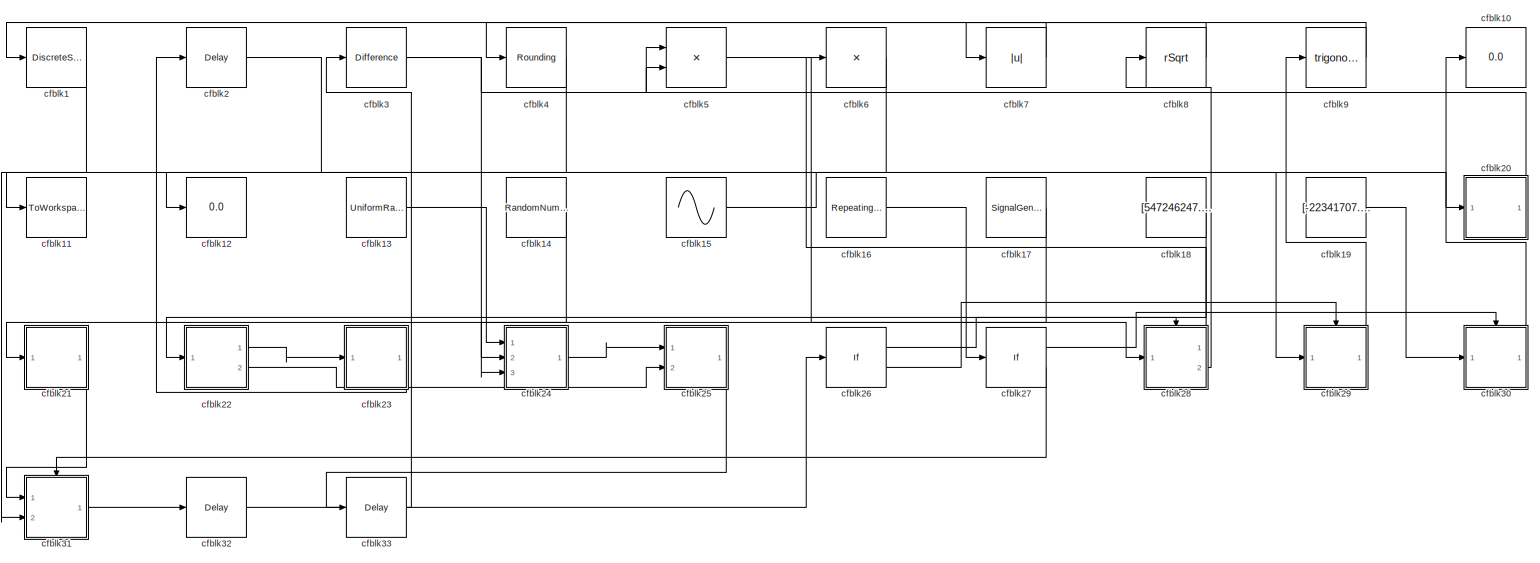
[diagram: root canvas - part 1/1, most of the canvas]
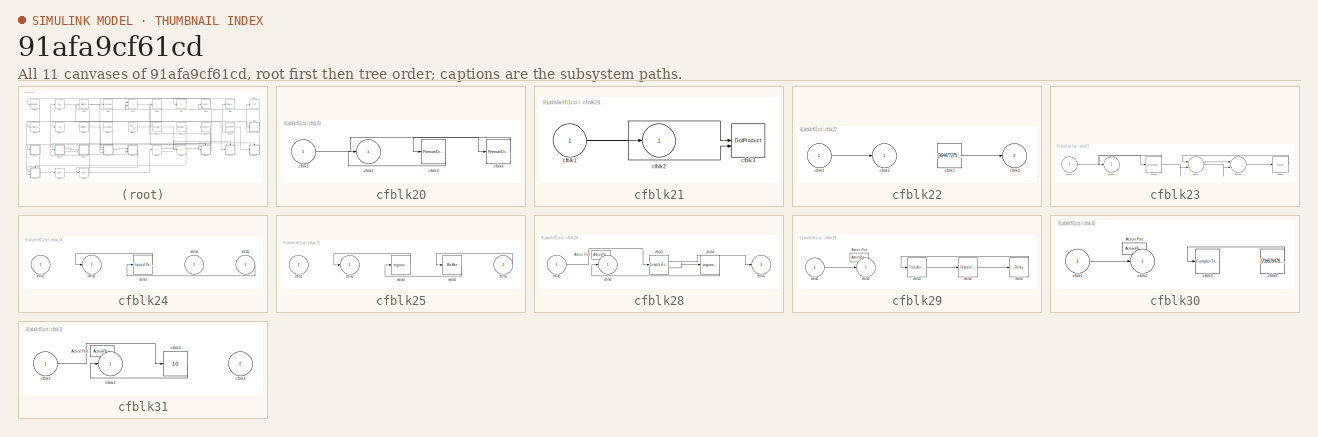
[diagram: thumbnail index - all 11 canvases of the model, root first then tree order]
MODEL slx_91afa9cf61cd
KIND model
CONFIG AbsTol = auto
CONFIG EnableMultiTasking = off
CONFIG FixedStep = auto
CONFIG MaxStep = auto
CONFIG MinStep = auto
CONFIG RelTol = 1e-3
CONFIG SampleTimeConstraint = Unconstrained
CONFIG SolverName = VariableStepAuto
CONFIG StartTime = 0.0
CONFIG StopTime = 10.0
BLOCK [DiscreteStateSpace] cfblk1
BLOCK [Display] cfblk10
  Decimation = 1
  Ports = [1]
BLOCK [ToWorkspace] cfblk11
  FixptAsFi = on
  MaxDataPoints = inf
  Ports = [1]
  SampleTime = -1
  SaveFormat = Timeseries
  VariableName = mathbqp
BLOCK [Display] cfblk12
  Decimation = 1
  Ports = [1]
BLOCK [UniformRandomNumber] cfblk13
  Maximum = [3433340818.246167]
  Minimum = [-421983085.608282]
  SampleTime = 0.1
  Seed = [66348310.000000]
BLOCK [RandomNumber] cfblk14
  Mean = [-95778.519476]
  SampleTime = 0.1
  Seed = [321896255.000000]
  Variance = [30138.949013]
BLOCK [Sin] cfblk15
  Amplitude = [638491597.447278]
  Bias = [92663918.760373]
  Ports = [0, 1]
  SampleTime = 0
BLOCK [Reference] cfblk16  REF=simulink/Sources/Repeating
Sequence
Interpolated
  Ports = [0, 1]
  SourceBlock = simulink/Sources/Repeating\nSequence\nInterpolated
  SourceProductBaseCode = SL
  SourceType = Repeating Sequence Interpolated
BLOCK [SignalGenerator] cfblk17
  Amplitude = [-48112224.356476]
  Ports = [0, 1]
  Units = rad/sec
BLOCK [Constant] cfblk18
  SampleTime = 1
  Value = [547246247.992021]
BLOCK [Constant] cfblk19
  SampleTime = 1
  Value = [-22341707.480297]
BLOCK [Delay] cfblk2
  InputPortMap = u0
  Ports = [1, 1]
  SampleTime = 1
BLOCK [SubSystem] cfblk20
  Ports = [1, 1]
  RequestExecContextInheritance = off
BLOCK [Inport] cfblk20/cfblk1
BLOCK [Outport] cfblk20/cfblk2
BLOCK [PermuteDimensions] cfblk20/cfblk3
BLOCK [PermuteDimensions] cfblk20/cfblk4
BLOCK [SubSystem] cfblk21
  Ports = [1, 1]
  RequestExecContextInheritance = off
BLOCK [Inport] cfblk21/cfblk1
BLOCK [Outport] cfblk21/cfblk2
BLOCK [DotProduct] cfblk21/cfblk3
  OutDataTypeStr = Inherit: Inherit via internal rule
BLOCK [SubSystem] cfblk22
  Ports = [1, 2]
  RequestExecContextInheritance = off
BLOCK [Inport] cfblk22/cfblk1
BLOCK [Outport] cfblk22/cfblk2
BLOCK [Constant] cfblk22/cfblk3
  SampleTime = 1
  Value = [364477275.805719]
BLOCK [Outport] cfblk22/cfblk4
  Port = 2
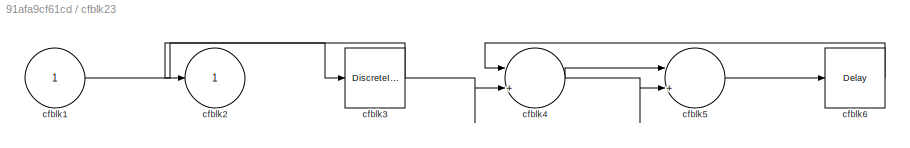
BLOCK [SubSystem] cfblk23
  Ports = [1, 1]
  RequestExecContextInheritance = off
BLOCK [Inport] cfblk23/cfblk1
BLOCK [Outport] cfblk23/cfblk2
BLOCK [DiscreteIntegrator] cfblk23/cfblk3
  ICPrevOutput = DiscIntNeverNeededParam
  ICPrevScaledInput = DiscIntNeverNeededParam
  InitialConditionSetting = Auto
  Ports = [1, 1]
BLOCK [Sum] cfblk23/cfblk4
  Inputs = |++
  Ports = [2, 1]
BLOCK [Sum] cfblk23/cfblk5
  Inputs = |++
  Ports = [2, 1]
BLOCK [Delay] cfblk23/cfblk6
  InputPortMap = u0
  Ports = [1, 1]
  SampleTime = 1
BLOCK [SubSystem] cfblk24
  Ports = [3, 1]
  RequestExecContextInheritance = off
BLOCK [Inport] cfblk24/cfblk1
BLOCK [Outport] cfblk24/cfblk2
BLOCK [Reference] cfblk24/cfblk3  REF=simulink/Discrete/Tapped Delay
  Ports = [1, 1]
  SourceBlock = simulink/Discrete/Tapped Delay
  SourceProductBaseCode = SL
  SourceType = Tapped Delay Line
BLOCK [Inport] cfblk24/cfblk4
  Port = 2
BLOCK [Inport] cfblk24/cfblk5
  Port = 3
BLOCK [SubSystem] cfblk25
  Ports = [2, 1]
  RequestExecContextInheritance = off
BLOCK [Inport] cfblk25/cfblk1
BLOCK [Outport] cfblk25/cfblk2
BLOCK [Trigonometry] cfblk25/cfblk3
  Ports = [1, 1]
BLOCK [MinMax] cfblk25/cfblk4
  Ports = [1, 1]
BLOCK [Inport] cfblk25/cfblk5
  Port = 2
BLOCK [If] cfblk26
  IfExpression = u1 >= 0
  Ports = [1, 2]
  SampleTime = 1
BLOCK [If] cfblk27
  IfExpression = u1 >= 0
  Ports = [1, 2]
  SampleTime = 1
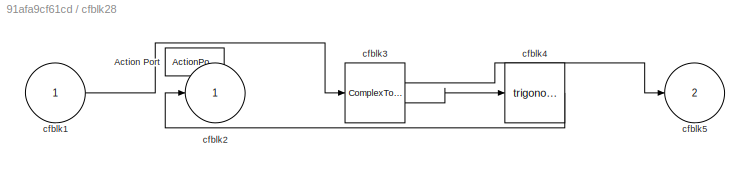
BLOCK [SubSystem] cfblk28
  Ports = [1, 2, 0, 0, 0, 0, 0, 1]
  RequestExecContextInheritance = off
  TreatAsAtomicUnit = on
BLOCK [ActionPort] cfblk28/Action Port
  ActionPortLabel = if(u1 >= 0)
BLOCK [Inport] cfblk28/cfblk1
BLOCK [Outport] cfblk28/cfblk2
BLOCK [ComplexToRealImag] cfblk28/cfblk3
  Ports = [1, 2]
BLOCK [Trigonometry] cfblk28/cfblk4
  Ports = [1, 1]
BLOCK [Outport] cfblk28/cfblk5
  Port = 2
BLOCK [SubSystem] cfblk29
  Ports = [1, 1, 0, 0, 0, 0, 0, 1]
  RequestExecContextInheritance = off
  TreatAsAtomicUnit = on
BLOCK [ActionPort] cfblk29/Action Port
  ActionPortLabel = else
BLOCK [Inport] cfblk29/cfblk1
BLOCK [Outport] cfblk29/cfblk2
BLOCK [Reference] cfblk29/cfblk3  REF=simulink/Discrete/Transfer Fcn
Real Zero
  Ports = [1, 1]
  SourceBlock = simulink/Discrete/Transfer Fcn\nReal Zero
  SourceProductBaseCode = SL
  SourceType = Transfer Fcn Real Zero
BLOCK [DiscreteIntegrator] cfblk29/cfblk4
  ICPrevOutput = DiscIntNeverNeededParam
  ICPrevScaledInput = DiscIntNeverNeededParam
  InitialConditionSetting = Auto
  Ports = [1, 1]
  SampleTime = -1
BLOCK [Delay] cfblk29/cfblk5
  InputPortMap = u0
  Ports = [1, 1]
BLOCK [Reference] cfblk3  REF=simulink/Discrete/Difference
  Ports = [1, 1]
  SourceBlock = simulink/Discrete/Difference
  SourceProductBaseCode = SL
  SourceType = Difference
BLOCK [SubSystem] cfblk30
  Ports = [1, 1, 0, 0, 0, 0, 0, 1]
  RequestExecContextInheritance = off
  TreatAsAtomicUnit = on
BLOCK [ActionPort] cfblk30/Action Port
  ActionPortLabel = if(u1 >= 0)
BLOCK [Inport] cfblk30/cfblk1
BLOCK [Outport] cfblk30/cfblk2
BLOCK [ComplexToMagnitudeAngle] cfblk30/cfblk3
  Ports = [1, 2]
BLOCK [Constant] cfblk30/cfblk4
  SampleTime = 1
  Value = [706676478.988094]
BLOCK [SubSystem] cfblk31
  Ports = [2, 1, 0, 0, 0, 0, 0, 1]
  RequestExecContextInheritance = off
  TreatAsAtomicUnit = on
BLOCK [ActionPort] cfblk31/Action Port
  ActionPortLabel = else
BLOCK [Inport] cfblk31/cfblk1
BLOCK [Outport] cfblk31/cfblk2
BLOCK [UnitDelay] cfblk31/cfblk3
  HasFrameUpgradeWarning = on
  SampleTime = -1
BLOCK [Inport] cfblk31/cfblk4
  Port = 2
BLOCK [Delay] cfblk32
  InputPortMap = u0
  Ports = [1, 1]
  SampleTime = 1
BLOCK [Delay] cfblk33
  InputPortMap = u0
  Ports = [1, 1]
  SampleTime = 1
BLOCK [Rounding] cfblk4
BLOCK [Product] cfblk5
  Ports = [2, 1]
BLOCK [Product] cfblk6
  Inputs = *
  Ports = [1, 1]
BLOCK [Abs] cfblk7
  SaturateOnIntegerOverflow = off
BLOCK [Sqrt] cfblk8
  AlgorithmType = Newton-Raphson
  Operator = rSqrt
BLOCK [Trigonometry] cfblk9
  Ports = [1, 1]
LINE cfblk13:1 -> cfblk24:1
LINE cfblk14:1 -> cfblk21:1
LINE cfblk15:1 -> cfblk29:1
LINE cfblk16:1 -> cfblk27:1
LINE cfblk17:1 -> cfblk24:3
LINE cfblk18:1 -> cfblk22:1
LINE cfblk19:1 -> cfblk30:1
LINE cfblk1:1 -> cfblk11:1
LINE cfblk20/cfblk1:1 -> cfblk20/cfblk4:1
LINE cfblk20/cfblk3:1 -> cfblk20/cfblk2:1
LINE cfblk20/cfblk4:1 -> cfblk20/cfblk3:1
LINE cfblk20:1 -> cfblk5:1
NET cfblk21/cfblk1:1 -> cfblk21/cfblk2:1, cfblk21/cfblk3:1, cfblk21/cfblk3:2
LINE cfblk21:1 -> cfblk31:1
LINE cfblk22/cfblk1:1 -> cfblk22/cfblk2:1
LINE cfblk22/cfblk3:1 -> cfblk22/cfblk4:1
LINE cfblk22:1 -> cfblk23:1
LINE cfblk22:2 -> cfblk25:2
LINE cfblk23/cfblk1:1 -> cfblk23/cfblk3:1
NET cfblk23/cfblk3:1 -> cfblk23/cfblk2:1, cfblk23/cfblk4:2
NET cfblk23/cfblk4:1 -> cfblk23/cfblk5:1, cfblk23/cfblk5:2
LINE cfblk23/cfblk5:1 -> cfblk23/cfblk6:1
LINE cfblk23/cfblk6:1 -> cfblk23/cfblk4:1
LINE cfblk23:1 -> cfblk2:1
LINE cfblk24/cfblk3:1 -> cfblk24/cfblk2:1
LINE cfblk24/cfblk5:1 -> cfblk24/cfblk3:1
LINE cfblk24:1 -> cfblk25:1
LINE cfblk25/cfblk3:1 -> cfblk25/cfblk2:1
LINE cfblk25/cfblk4:1 -> cfblk25/cfblk3:1
LINE cfblk25/cfblk5:1 -> cfblk25/cfblk4:1
LINE cfblk25:1 -> cfblk33:1
LINE cfblk26:1 -> cfblk28:ifaction
LINE cfblk26:2 -> cfblk29:ifaction
LINE cfblk27:1 -> cfblk30:ifaction
LINE cfblk27:2 -> cfblk31:ifaction
LINE cfblk28/cfblk1:1 -> cfblk28/cfblk3:1
LINE cfblk28/cfblk3:1 -> cfblk28/cfblk5:1
LINE cfblk28/cfblk3:2 -> cfblk28/cfblk4:1
LINE cfblk28/cfblk4:1 -> cfblk28/cfblk2:1
LINE cfblk28:1 -> cfblk6:1
LINE cfblk28:2 -> cfblk8:1
LINE cfblk29/cfblk1:1 -> cfblk29/cfblk2:1
LINE cfblk29/cfblk3:1 -> cfblk29/cfblk4:1
LINE cfblk29/cfblk4:1 -> cfblk29/cfblk5:1
LINE cfblk29/cfblk5:1 -> cfblk29/cfblk3:1
LINE cfblk29:1 -> cfblk9:1
LINE cfblk2:1 -> cfblk20:1
LINE cfblk30/cfblk1:1 -> cfblk30/cfblk2:1
LINE cfblk30/cfblk4:1 -> cfblk30/cfblk3:1
LINE cfblk30:1 -> cfblk10:1
LINE cfblk31/cfblk1:1 -> cfblk31/cfblk3:1
LINE cfblk31/cfblk3:1 -> cfblk31/cfblk2:1
LINE cfblk31:1 -> cfblk32:1
LINE cfblk32:1 -> cfblk26:1
LINE cfblk33:1 -> cfblk3:1
NET cfblk3:1 -> cfblk24:2, cfblk5:2
LINE cfblk4:1 -> cfblk12:1
LINE cfblk5:1 -> cfblk28:1
LINE cfblk6:1 -> cfblk31:2
LINE cfblk7:1 -> cfblk1:1
LINE cfblk8:1 -> cfblk4:1
LINE cfblk9:1 -> cfblk7:1
note: NET lines group one-source signal fan-out (src -> all destinations, sorted); 1:1 wires keep LINE
